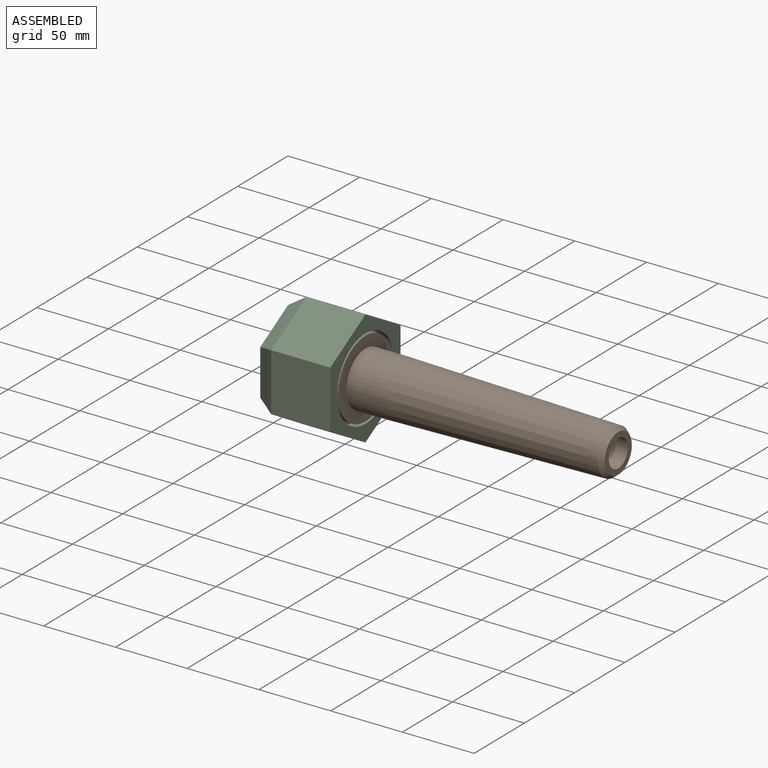
[diagram: assembled view]
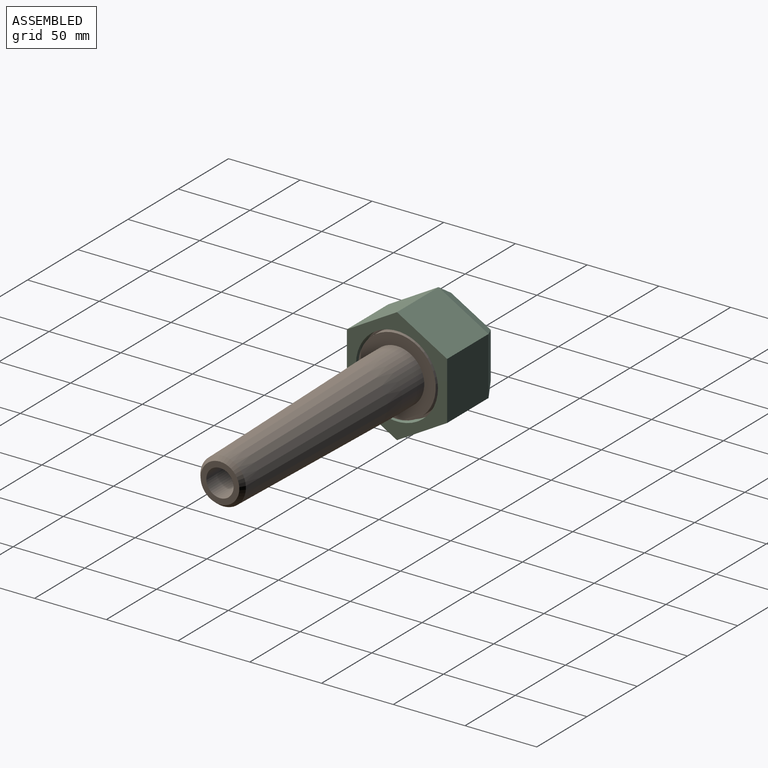
[diagram: assembled view, second angle]
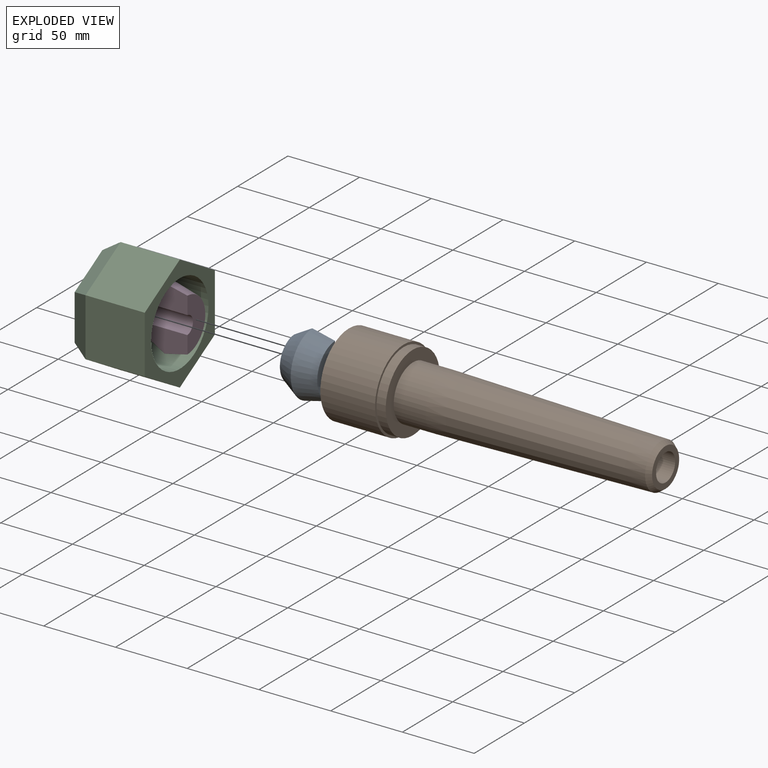
[diagram: exploded view]
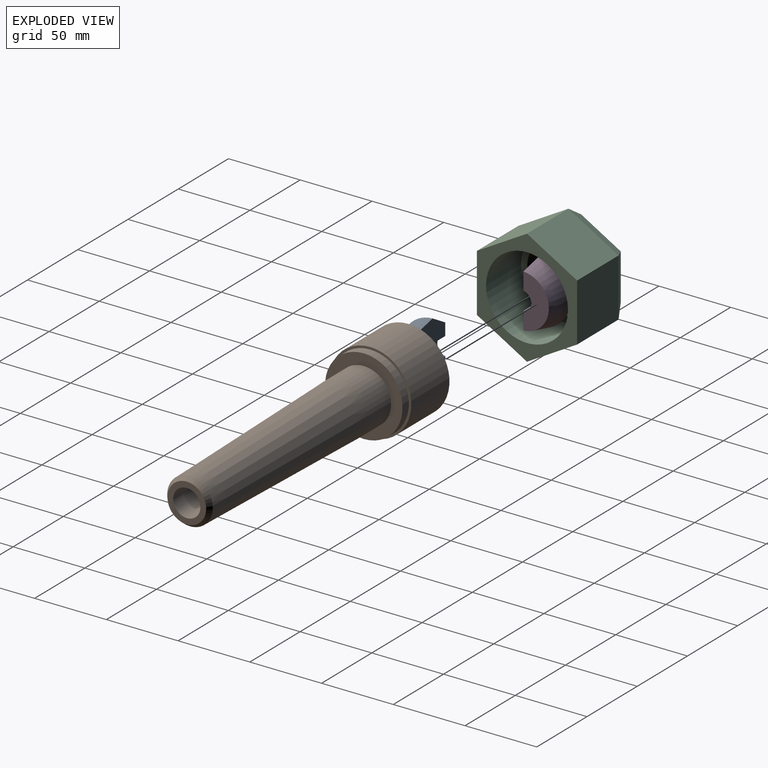
[diagram: exploded view, second angle]
ASSEMBLY  parts=4 mates=2
PART A: 7 faces, bbox 28.6x21.8x44.5 mm
  f0: plane 37.09x17.77mm, normal (1,0,0), area 458.4mm2, adj f1,f3,f5,f6
  f1: cone r=22.23mm half-angle=13deg, axis (-1,0,0), area 1017.8mm2, adj f0,f2,f5,f6
  f2: cone r=22.23mm half-angle=30deg, axis (1,0,0), area 831.1mm2, adj f1,f4,f5,f6
  f3: cylinder r=6.35mm len=28.58mm, axis (-1,0,0), area 524.6mm2, adj f0,f4,f5,f6
  f4: plane 29.74x14.1mm, normal (-1,0,0), area 271.5mm2, adj f2,f3,f5,f6
  f5: plane 28.64x15.98mm, normal (0,1,0), area 378.9mm2, adj f0,f1,f2,f3,f4
  f6: plane 28.64x15.98mm, normal (0,1,0), area 378.9mm2, adj f0,f1,f2,f3,f4
PART B: 13 faces, bbox 220.7x57.2x57.2 mm
  f0: cylinder r=26.99mm len=53.98mm, axis (-1,0,0), area 1076.8mm2, adj f1,f10
  f1: plane 57.15x57.15mm, normal (1,0,0), area 277.1mm2, adj f0,f2
  f2: cylinder r=28.57mm len=57.15mm, axis (-1,0,0), area 6840.6mm2, adj f1,f3
  f3: plane 57.15x57.15mm, normal (-1,0,0), area 1068.3mm2, adj f2,f4
  f4: cone r=21.83mm half-angle=13deg, axis (-1,0,0), area 3718.7mm2, adj f3,f5
  f5: plane 29x29mm, normal (-1,0,0), area 660.3mm2, adj f4
  f6: plane 26.99x26.99mm, normal (1,0,0), area 287mm2, adj f7,f11
  f7: cone r=13.49mm half-angle=36.9deg, axis (-1,0,0), area 366.2mm2, adj f6,f8
  f8: cone r=19.02mm half-angle=1.2deg, axis (-1,0,0), area 16538.7mm2, adj f7,f9
  f9: cylinder r=19.02mm len=38.05mm, axis (-1,0,0), area 2656.7mm2, adj f8,f10
  f10: plane 53.98x53.98mm, normal (1,0,0), area 1151mm2, adj f0,f9
  f11: cylinder r=9.53mm len=47.63mm, axis (1,0,0), area 2850.2mm2, adj f6,f12
  f12: cone r=0mm half-angle=59deg, axis (1,0,0), area 332.5mm2, adj f11
PART C: 18 faces, bbox 54x69.9x80.7 mm
  f0: cylinder r=15.08mm len=30.16mm, axis (1,0,0), area 300.9mm2, adj f2,f17
  f1: plane 80.66x69.85mm, normal (1,0,0), area 1660.2mm2, adj f3,f4,f5,f6,f7,f8,f16
  f2: plane 63.72x55.19mm, normal (-1,0,0), area 1922.9mm2, adj f0,f9,f10,f11,f12,f13,f14
  f3: plane 41.28x40.33mm, normal (0,-1,0), area 1664.5mm2, adj f1,f5,f8,f11
  f4: plane 41.28x40.33mm, normal (0,1,0), area 1664.5mm2, adj f1,f6,f7,f12
  f5: plane 41.28x34.93mm, normal (0,-0.5,-0.87), area 1664.5mm2, adj f1,f3,f6,f9
  f6: plane 41.28x34.93mm, normal (0,0.5,-0.87), area 1664.5mm2, adj f1,f4,f5,f10
  f7: plane 41.28x34.93mm, normal (0,0.5,0.87), area 1664.5mm2, adj f1,f4,f8,f14
  f8: plane 41.28x34.93mm, normal (0,-0.5,0.87), area 1664.5mm2, adj f1,f3,f7,f13
  f9: plane 34.93x24.4mm, normal (-0.5,-0.43,-0.75), area 529.3mm2, adj f2,f5,f10,f11
  f10: plane 34.93x24.4mm, normal (-0.5,0.43,-0.75), area 529.3mm2, adj f2,f6,f9,f12
  f11: plane 40.33x12.7mm, normal (-0.5,-0.87,0), area 529.3mm2, adj f2,f3,f9,f13
  f12: plane 40.33x12.7mm, normal (-0.5,0.87,0), area 529.3mm2, adj f2,f4,f10,f14
  f13: plane 34.93x24.4mm, normal (-0.5,-0.43,0.75), area 529.3mm2, adj f2,f8,f11,f14
  f14: plane 34.93x24.4mm, normal (-0.5,0.43,0.75), area 529.3mm2, adj f2,f7,f12,f13
  f15: plane 57.15x57.15mm, normal (1,0,0), area 718.3mm2, adj f16,f17
  f16: cylinder r=28.57mm len=57.15mm, axis (1,0,0), area 6270.5mm2, adj f1,f15
  f17: cone r=15.08mm half-angle=30deg, axis (1,0,0), area 2264.8mm2, adj f0,f15
PART D: 7 faces, bbox 28.6x21.8x44.5 mm
  f0: cylinder r=6.35mm len=28.58mm, axis (-1,0,0), area 524.6mm2, adj f3,f4,f5,f6
  f1: cone r=22.23mm half-angle=30deg, axis (1,0,0), area 831.1mm2, adj f2,f4,f5,f6
  f2: cone r=22.23mm half-angle=13deg, axis (-1,0,0), area 1017.8mm2, adj f1,f3,f5,f6
  f3: plane 37.09x17.77mm, normal (1,0,0), area 458.4mm2, adj f0,f2,f5,f6
  f4: plane 29.74x14.1mm, normal (-1,0,0), area 271.5mm2, adj f0,f1,f5,f6
  f5: plane 28.64x15.98mm, normal (0,-1,0), area 378.9mm2, adj f0,f1,f2,f3,f4
  f6: plane 28.64x15.98mm, normal (0,-1,0), area 378.9mm2, adj f0,f1,f2,f3,f4
PLACE A t=(0.62,1.66,2.63)mm
PLACE B t=(-31.42,1.66,2.63)mm
PLACE C t=(67.68,1.66,2.63)mm fixed
PLACE D t=(0.62,1.66,2.63)mm
MATE cylindrical B.f0 <-> A.f1  axis (-1,0,0) through (-15.55,1.66,2.63)mm
MATE cylindrical D.f0 <-> C.f17  axis (1,0,0) through (-29.83,1.66,2.63)mm
